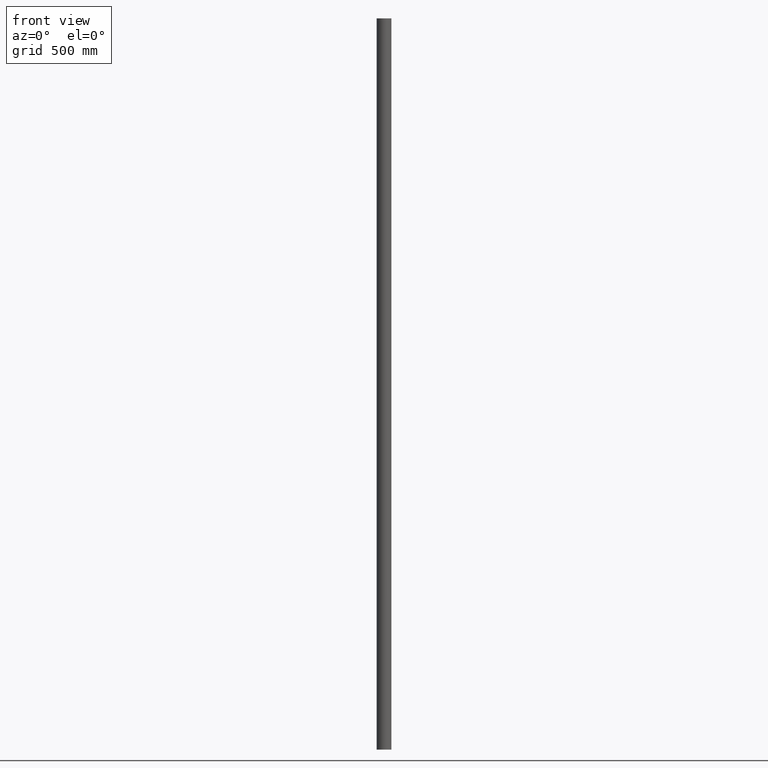
[diagram: clean part render]
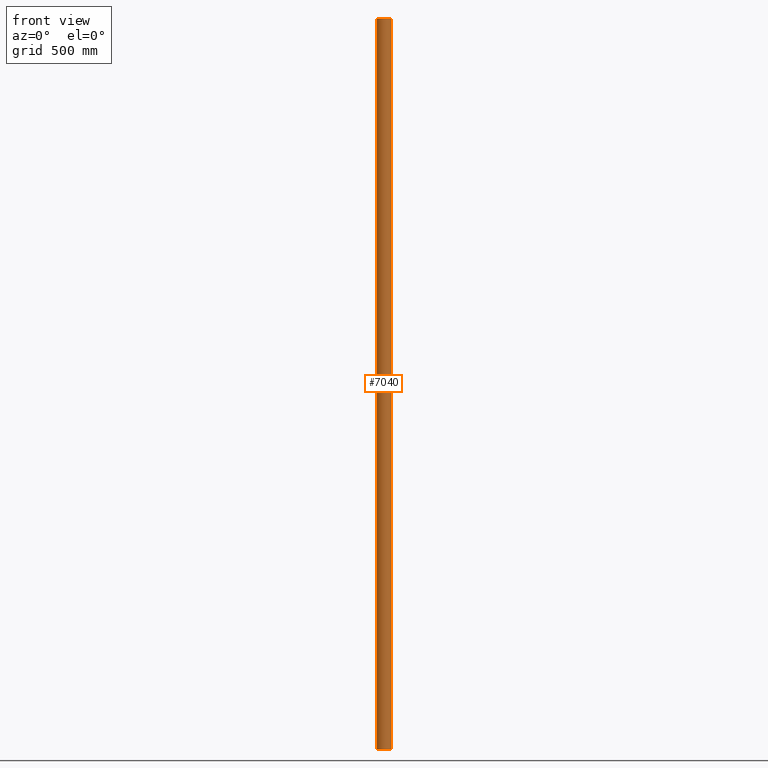
[diagram: same view with one face highlighted and labeled with its STEP entity id]
A machine part, front view. The second image highlights one B-rep face of the part: STEP entity #7040.
In plain terms, the highlighted cylindrical surface (bore or boss wall) has radius 30.15 mm, axis along (-0, -0, -1).
Its self-contained STEP definition (entity closure, byte-faithful):
#15 = FACE_OUTER_BOUND ( 'NONE', #5954, .T. ) ;
#193 = EDGE_CURVE ( 'NONE', #11613, #11613, #10161, .T. ) ;
#527 = FACE_OUTER_BOUND ( 'NONE', #9391, .T. ) ;
#836 = CARTESIAN_POINT ( 'NONE',  ( 0.000000000000000000, 0.000000000000000000, 1500.000000000000000 ) ) ;
#1361 = VERTEX_POINT ( 'NONE', #2088 ) ;
#1877 = CIRCLE ( 'NONE', #11356, 30.14999999999999858 ) ;
#2000 = DIRECTION ( 'NONE',  ( 0.000000000000000000, 0.000000000000000000, 1.000000000000000000 ) ) ;
#2047 = DIRECTION ( 'NONE',  ( 1.000000000000000000, 0.000000000000000000, 0.000000000000000000 ) ) ;
#2088 = CARTESIAN_POINT ( 'NONE',  ( 30.14999999999999858, 0.000000000000000000, -1500.000000000000000 ) ) ;
#5954 = EDGE_LOOP ( 'NONE', ( #11497 ) ) ;
#6208 = AXIS2_PLACEMENT_3D ( 'NONE', #10264, #13531, #6783 ) ;
#6783 = DIRECTION ( 'NONE',  ( -1.000000000000000000, 0.000000000000000000, 0.000000000000000000 ) ) ;
#7040 = ADVANCED_FACE ( 'NONE', ( #15, #527 ), #14210, .T. ) ;
#9391 = EDGE_LOOP ( 'NONE', ( #11333 ) ) ;
#10161 = CIRCLE ( 'NONE', #12078, 30.14999999999999858 ) ;
#10264 = CARTESIAN_POINT ( 'NONE',  ( 0.000000000000000000, 0.000000000000000000, 1500.000000000000000 ) ) ;
#11333 = ORIENTED_EDGE ( 'NONE', *, *, #14249, .T. ) ;
#11356 = AXIS2_PLACEMENT_3D ( 'NONE', #13956, #11742, #11841 ) ;
#11497 = ORIENTED_EDGE ( 'NONE', *, *, #193, .F. ) ;
#11613 = VERTEX_POINT ( 'NONE', #14144 ) ;
#11742 = DIRECTION ( 'NONE',  ( 0.000000000000000000, 0.000000000000000000, 1.000000000000000000 ) ) ;
#11841 = DIRECTION ( 'NONE',  ( 1.000000000000000000, 0.000000000000000000, 0.000000000000000000 ) ) ;
#12078 = AXIS2_PLACEMENT_3D ( 'NONE', #836, #2000, #2047 ) ;
#13531 = DIRECTION ( 'NONE',  ( -0.000000000000000000, -0.000000000000000000, -1.000000000000000000 ) ) ;
#13956 = CARTESIAN_POINT ( 'NONE',  ( 0.000000000000000000, 0.000000000000000000, -1500.000000000000000 ) ) ;
#14144 = CARTESIAN_POINT ( 'NONE',  ( 30.14999999999999858, 0.000000000000000000, 1500.000000000000000 ) ) ;
#14210 = CYLINDRICAL_SURFACE ( 'NONE', #6208, 30.14999999999999858 ) ;
#14249 = EDGE_CURVE ( 'NONE', #1361, #1361, #1877, .T. ) ;